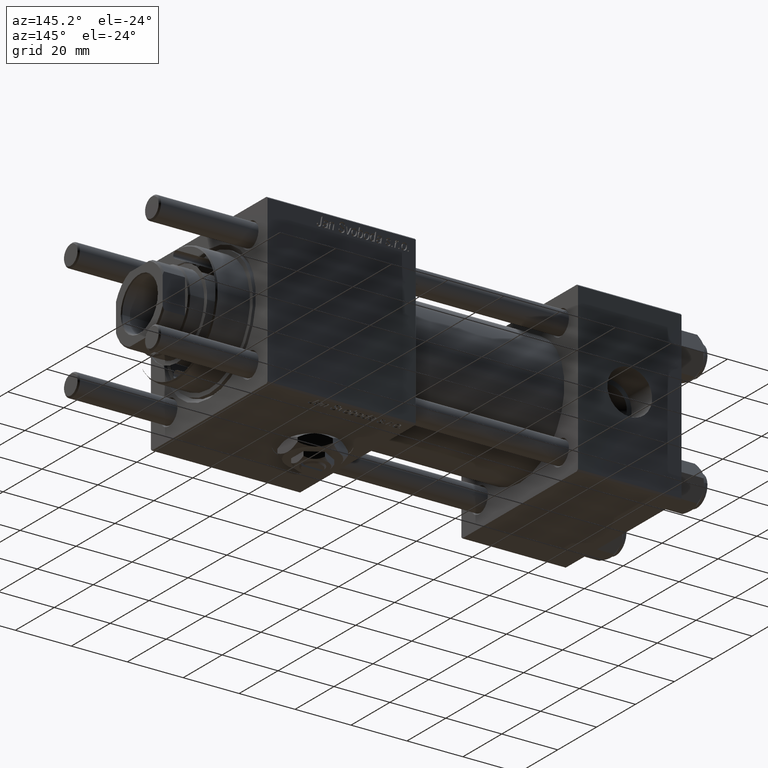
[diagram: clean part render]
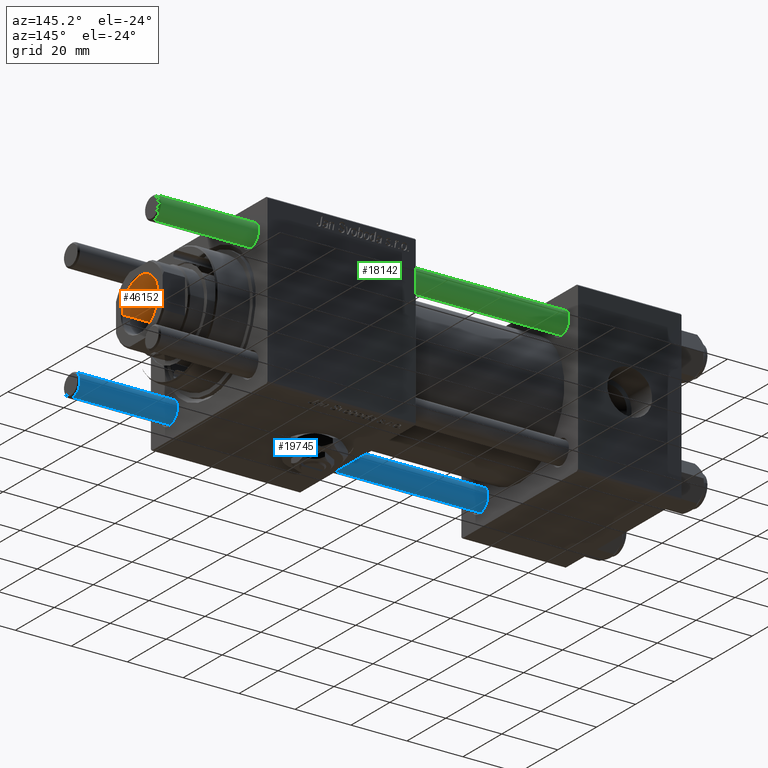
[diagram: same view with three faces highlighted in distinct colors, each labeled with its STEP entity id]
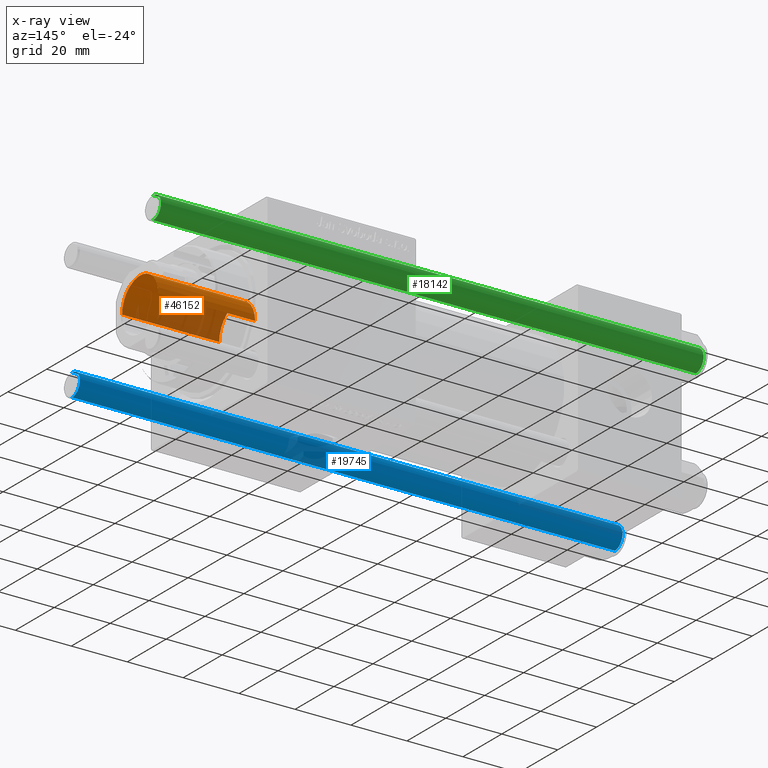
[diagram: x-ray of the same camera — body ghosted, the three highlighted faces saturated]
A machine part, auxiliary view with three faces highlighted in distinct colors.
The next image is the same camera in x-ray (body ghosted, the three faces saturated) — at least one of them is partly hidden behind the body in this view.
Their STEP definitions:

[orange] entity #46152 — the highlighted cylindrical surface (edge-blend (fillet) strip) has radius 9.25 mm, axis along (1, 0, 0).
#163 = CARTESIAN_POINT ( 'NONE',  ( -9.249999999999992895, 1.132798289211300712E-15, 101.0000000000000000 ) ) ;
#2490 = ORIENTED_EDGE ( 'NONE', *, *, #45669, .F. ) ;
#2852 = LINE ( 'NONE', #33988, #14088 ) ;
#3684 = CARTESIAN_POINT ( 'NONE',  ( 9.249999999999994671, 0.000000000000000000, 135.7000000000000455 ) ) ;
#5181 = CARTESIAN_POINT ( 'NONE',  ( 0.000000000000000000, 0.000000000000000000, 101.0000000000000000 ) ) ;
#6431 = AXIS2_PLACEMENT_3D ( 'NONE', #12896, #40179, #12607 ) ;
#9024 = DIRECTION ( 'NONE',  ( 1.000000000000000000, 0.000000000000000000, 0.000000000000000000 ) ) ;
#9612 = FACE_OUTER_BOUND ( 'NONE', #57610, .T. ) ;
#9821 = LINE ( 'NONE', #37381, #37963 ) ;
#12607 = DIRECTION ( 'NONE',  ( 1.000000000000000000, 0.000000000000000000, 0.000000000000000000 ) ) ;
#12896 = CARTESIAN_POINT ( 'NONE',  ( 0.000000000000000000, 0.000000000000000000, 135.7000000000000455 ) ) ;
#13324 = AXIS2_PLACEMENT_3D ( 'NONE', #23229, #17613, #9024 ) ;
#13779 = EDGE_CURVE ( 'NONE', #19591, #19878, #37711, .T. ) ;
#14088 = VECTOR ( 'NONE', #30718, 1000.000000000000000 ) ;
#17193 = ORIENTED_EDGE ( 'NONE', *, *, #13779, .T. ) ;
#17613 = DIRECTION ( 'NONE',  ( -0.000000000000000000, -0.000000000000000000, 1.000000000000000000 ) ) ;
#17776 = EDGE_CURVE ( 'NONE', #18783, #19591, #2852, .T. ) ;
#17937 = DIRECTION ( 'NONE',  ( -0.000000000000000000, -0.000000000000000000, 1.000000000000000000 ) ) ;
#18227 = DIRECTION ( 'NONE',  ( 1.000000000000000000, 0.000000000000000000, 0.000000000000000000 ) ) ;
#18783 = VERTEX_POINT ( 'NONE', #163 ) ;
#19591 = VERTEX_POINT ( 'NONE', #40008 ) ;
#19878 = VERTEX_POINT ( 'NONE', #3684 ) ;
#21962 = VERTEX_POINT ( 'NONE', #33769 ) ;
#23229 = CARTESIAN_POINT ( 'NONE',  ( 0.000000000000000000, 0.000000000000000000, 136.0000000000000000 ) ) ;
#23234 = CIRCLE ( 'NONE', #56422, 9.249999999999992895 ) ;
#26174 = EDGE_CURVE ( 'NONE', #18783, #21962, #23234, .T. ) ;
#28184 = DIRECTION ( 'NONE',  ( -0.000000000000000000, -0.000000000000000000, 1.000000000000000000 ) ) ;
#30718 = DIRECTION ( 'NONE',  ( -0.000000000000000000, -0.000000000000000000, 1.000000000000000000 ) ) ;
#33171 = ORIENTED_EDGE ( 'NONE', *, *, #26174, .F. ) ;
#33769 = CARTESIAN_POINT ( 'NONE',  ( 9.249999999999992895, 0.000000000000000000, 101.0000000000000000 ) ) ;
#33988 = CARTESIAN_POINT ( 'NONE',  ( -9.249999999999994671, 1.132798289211300909E-15, 136.0000000000000000 ) ) ;
#35708 = CYLINDRICAL_SURFACE ( 'NONE', #13324, 9.249999999999994671 ) ;
#37381 = CARTESIAN_POINT ( 'NONE',  ( 9.249999999999994671, 0.000000000000000000, 136.0000000000000000 ) ) ;
#37711 = CIRCLE ( 'NONE', #6431, 9.249999999999994671 ) ;
#37963 = VECTOR ( 'NONE', #28184, 1000.000000000000000 ) ;
#40008 = CARTESIAN_POINT ( 'NONE',  ( -9.249999999999994671, 1.132798289211300909E-15, 135.7000000000000455 ) ) ;
#40179 = DIRECTION ( 'NONE',  ( 0.000000000000000000, 0.000000000000000000, 1.000000000000000000 ) ) ;
#45669 = EDGE_CURVE ( 'NONE', #21962, #19878, #9821, .T. ) ;
#46152 = ADVANCED_FACE ( 'NONE', ( #9612 ), #35708, .F. ) ;
#52084 = ORIENTED_EDGE ( 'NONE', *, *, #17776, .T. ) ;
#56422 = AXIS2_PLACEMENT_3D ( 'NONE', #5181, #17937, #18227 ) ;
#57610 = EDGE_LOOP ( 'NONE', ( #33171, #52084, #17193, #2490 ) ) ;

[blue] entity #19745 — the highlighted cylindrical surface (edge-blend (fillet) strip) has radius 4 mm, axis along (1, 0, 0).
#3523 = DIRECTION ( 'NONE',  ( -1.000000000000000000, 0.000000000000000000, 0.000000000000000000 ) ) ;
#3752 = ORIENTED_EDGE ( 'NONE', *, *, #11901, .T. ) ;
#3805 = CARTESIAN_POINT ( 'NONE',  ( 4.000000000000000000, 4.898587196589412829E-16, 194.5000000000000568 ) ) ;
#8116 = CARTESIAN_POINT ( 'NONE',  ( 4.000000000000000000, 4.898587196589412829E-16, 195.0000000000000000 ) ) ;
#8904 = DIRECTION ( 'NONE',  ( 1.000000000000000000, 0.000000000000000000, 0.000000000000000000 ) ) ;
#11605 = CARTESIAN_POINT ( 'NONE',  ( 0.000000000000000000, 0.000000000000000000, 194.5000000000000568 ) ) ;
#11901 = EDGE_CURVE ( 'NONE', #21996, #48633, #19599, .T. ) ;
#12350 = CARTESIAN_POINT ( 'NONE',  ( -4.000000000000000000, 0.000000000000000000, 0.5000000000000004441 ) ) ;
#13012 = CARTESIAN_POINT ( 'NONE',  ( 0.000000000000000000, 0.000000000000000000, 195.0000000000000000 ) ) ;
#16068 = VERTEX_POINT ( 'NONE', #12350 ) ;
#16347 = VECTOR ( 'NONE', #41576, 1000.000000000000000 ) ;
#16811 = EDGE_LOOP ( 'NONE', ( #48995, #3752, #35628, #58577 ) ) ;
#18652 = AXIS2_PLACEMENT_3D ( 'NONE', #11605, #51977, #29981 ) ;
#19599 = CIRCLE ( 'NONE', #18652, 4.000000000000000000 ) ;
#19745 = ADVANCED_FACE ( 'NONE', ( #53688 ), #39413, .T. ) ;
#20864 = DIRECTION ( 'NONE',  ( -0.000000000000000000, -0.000000000000000000, -1.000000000000000000 ) ) ;
#20941 = EDGE_CURVE ( 'NONE', #16068, #39340, #52144, .T. ) ;
#21996 = VERTEX_POINT ( 'NONE', #3805 ) ;
#28204 = LINE ( 'NONE', #54953, #16347 ) ;
#29386 = CARTESIAN_POINT ( 'NONE',  ( 0.000000000000000000, 0.000000000000000000, 0.5000000000000004441 ) ) ;
#29981 = DIRECTION ( 'NONE',  ( 1.000000000000000000, 0.000000000000000000, 0.000000000000000000 ) ) ;
#33051 = AXIS2_PLACEMENT_3D ( 'NONE', #29386, #47514, #8904 ) ;
#35628 = ORIENTED_EDGE ( 'NONE', *, *, #51231, .T. ) ;
#37796 = VECTOR ( 'NONE', #20864, 1000.000000000000000 ) ;
#39340 = VERTEX_POINT ( 'NONE', #51041 ) ;
#39413 = CYLINDRICAL_SURFACE ( 'NONE', #52099, 4.000000000000000000 ) ;
#41253 = EDGE_CURVE ( 'NONE', #21996, #39340, #48760, .T. ) ;
#41576 = DIRECTION ( 'NONE',  ( -0.000000000000000000, -0.000000000000000000, -1.000000000000000000 ) ) ;
#44173 = DIRECTION ( 'NONE',  ( -0.000000000000000000, -0.000000000000000000, -1.000000000000000000 ) ) ;
#47514 = DIRECTION ( 'NONE',  ( -0.000000000000000000, -0.000000000000000000, 1.000000000000000000 ) ) ;
#48633 = VERTEX_POINT ( 'NONE', #53001 ) ;
#48760 = LINE ( 'NONE', #8116, #37796 ) ;
#48995 = ORIENTED_EDGE ( 'NONE', *, *, #41253, .F. ) ;
#51041 = CARTESIAN_POINT ( 'NONE',  ( 4.000000000000000000, 4.898587196589412829E-16, 0.5000000000000004441 ) ) ;
#51231 = EDGE_CURVE ( 'NONE', #48633, #16068, #28204, .T. ) ;
#51977 = DIRECTION ( 'NONE',  ( 0.000000000000000000, 0.000000000000000000, -1.000000000000000000 ) ) ;
#52099 = AXIS2_PLACEMENT_3D ( 'NONE', #13012, #44173, #3523 ) ;
#52144 = CIRCLE ( 'NONE', #33051, 4.000000000000000000 ) ;
#53001 = CARTESIAN_POINT ( 'NONE',  ( -4.000000000000000000, 0.000000000000000000, 194.5000000000000568 ) ) ;
#53688 = FACE_OUTER_BOUND ( 'NONE', #16811, .T. ) ;
#54953 = CARTESIAN_POINT ( 'NONE',  ( -4.000000000000000000, 0.000000000000000000, 195.0000000000000000 ) ) ;
#58577 = ORIENTED_EDGE ( 'NONE', *, *, #20941, .T. ) ;

[green] entity #18142 — the highlighted cylindrical surface (edge-blend (fillet) strip) has radius 4 mm, axis along (1, -0, -0).
#1930 = EDGE_LOOP ( 'NONE', ( #47916, #44036, #20567, #26501 ) ) ;
#2191 = CYLINDRICAL_SURFACE ( 'NONE', #10379, 4.000000000000000000 ) ;
#3805 = CARTESIAN_POINT ( 'NONE',  ( 4.000000000000000000, 4.898587196589412829E-16, 194.5000000000000568 ) ) ;
#8116 = CARTESIAN_POINT ( 'NONE',  ( 4.000000000000000000, 4.898587196589412829E-16, 195.0000000000000000 ) ) ;
#8976 = CIRCLE ( 'NONE', #42138, 4.000000000000000000 ) ;
#9768 = DIRECTION ( 'NONE',  ( 1.000000000000000000, 0.000000000000000000, 0.000000000000000000 ) ) ;
#10379 = AXIS2_PLACEMENT_3D ( 'NONE', #51770, #16119, #42846 ) ;
#12350 = CARTESIAN_POINT ( 'NONE',  ( -4.000000000000000000, 0.000000000000000000, 0.5000000000000004441 ) ) ;
#16068 = VERTEX_POINT ( 'NONE', #12350 ) ;
#16119 = DIRECTION ( 'NONE',  ( -0.000000000000000000, -0.000000000000000000, -1.000000000000000000 ) ) ;
#16347 = VECTOR ( 'NONE', #41576, 1000.000000000000000 ) ;
#18142 = ADVANCED_FACE ( 'NONE', ( #47315 ), #2191, .T. ) ;
#18642 = CARTESIAN_POINT ( 'NONE',  ( 0.000000000000000000, 0.000000000000000000, 0.5000000000000004441 ) ) ;
#20567 = ORIENTED_EDGE ( 'NONE', *, *, #23655, .T. ) ;
#20864 = DIRECTION ( 'NONE',  ( -0.000000000000000000, -0.000000000000000000, -1.000000000000000000 ) ) ;
#21996 = VERTEX_POINT ( 'NONE', #3805 ) ;
#22534 = CARTESIAN_POINT ( 'NONE',  ( 0.000000000000000000, 0.000000000000000000, 194.5000000000000568 ) ) ;
#23655 = EDGE_CURVE ( 'NONE', #39340, #16068, #8976, .T. ) ;
#26501 = ORIENTED_EDGE ( 'NONE', *, *, #51231, .F. ) ;
#27693 = EDGE_CURVE ( 'NONE', #48633, #21996, #49853, .T. ) ;
#28204 = LINE ( 'NONE', #54953, #16347 ) ;
#28949 = AXIS2_PLACEMENT_3D ( 'NONE', #22534, #54032, #31454 ) ;
#31454 = DIRECTION ( 'NONE',  ( 1.000000000000000000, 0.000000000000000000, 0.000000000000000000 ) ) ;
#37796 = VECTOR ( 'NONE', #20864, 1000.000000000000000 ) ;
#39340 = VERTEX_POINT ( 'NONE', #51041 ) ;
#41253 = EDGE_CURVE ( 'NONE', #21996, #39340, #48760, .T. ) ;
#41576 = DIRECTION ( 'NONE',  ( -0.000000000000000000, -0.000000000000000000, -1.000000000000000000 ) ) ;
#42138 = AXIS2_PLACEMENT_3D ( 'NONE', #18642, #50428, #9768 ) ;
#42846 = DIRECTION ( 'NONE',  ( -1.000000000000000000, 0.000000000000000000, 0.000000000000000000 ) ) ;
#44036 = ORIENTED_EDGE ( 'NONE', *, *, #41253, .T. ) ;
#47315 = FACE_OUTER_BOUND ( 'NONE', #1930, .T. ) ;
#47916 = ORIENTED_EDGE ( 'NONE', *, *, #27693, .T. ) ;
#48633 = VERTEX_POINT ( 'NONE', #53001 ) ;
#48760 = LINE ( 'NONE', #8116, #37796 ) ;
#49853 = CIRCLE ( 'NONE', #28949, 4.000000000000000000 ) ;
#50428 = DIRECTION ( 'NONE',  ( -0.000000000000000000, -0.000000000000000000, 1.000000000000000000 ) ) ;
#51041 = CARTESIAN_POINT ( 'NONE',  ( 4.000000000000000000, 4.898587196589412829E-16, 0.5000000000000004441 ) ) ;
#51231 = EDGE_CURVE ( 'NONE', #48633, #16068, #28204, .T. ) ;
#51770 = CARTESIAN_POINT ( 'NONE',  ( 0.000000000000000000, 0.000000000000000000, 195.0000000000000000 ) ) ;
#53001 = CARTESIAN_POINT ( 'NONE',  ( -4.000000000000000000, 0.000000000000000000, 194.5000000000000568 ) ) ;
#54032 = DIRECTION ( 'NONE',  ( 0.000000000000000000, 0.000000000000000000, -1.000000000000000000 ) ) ;
#54953 = CARTESIAN_POINT ( 'NONE',  ( -4.000000000000000000, 0.000000000000000000, 195.0000000000000000 ) ) ;